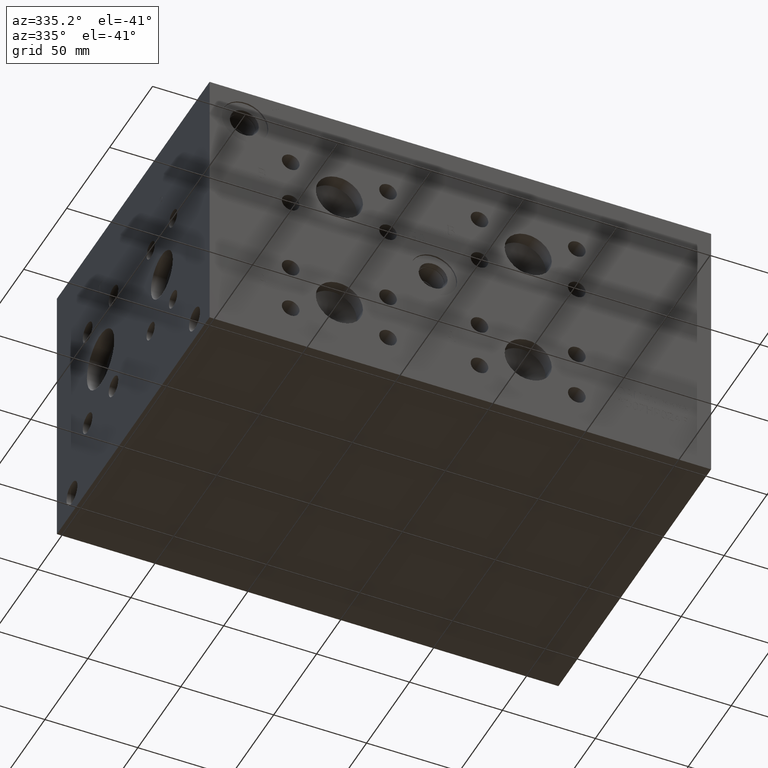
[diagram: clean part render]
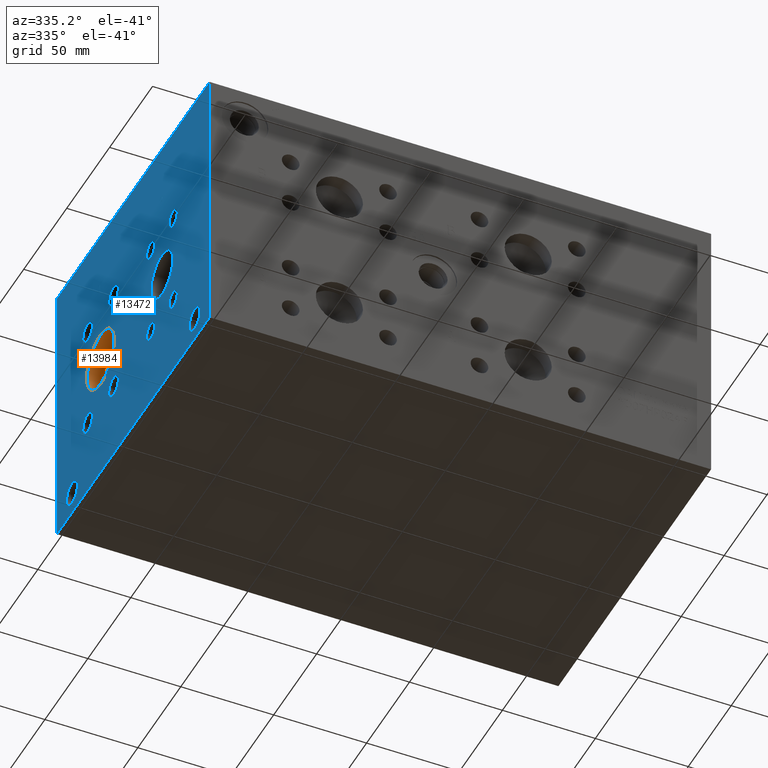
[diagram: same view with the hole feature highlighted: cylindrical wall and planar end face, labeled with their STEP entity ids]
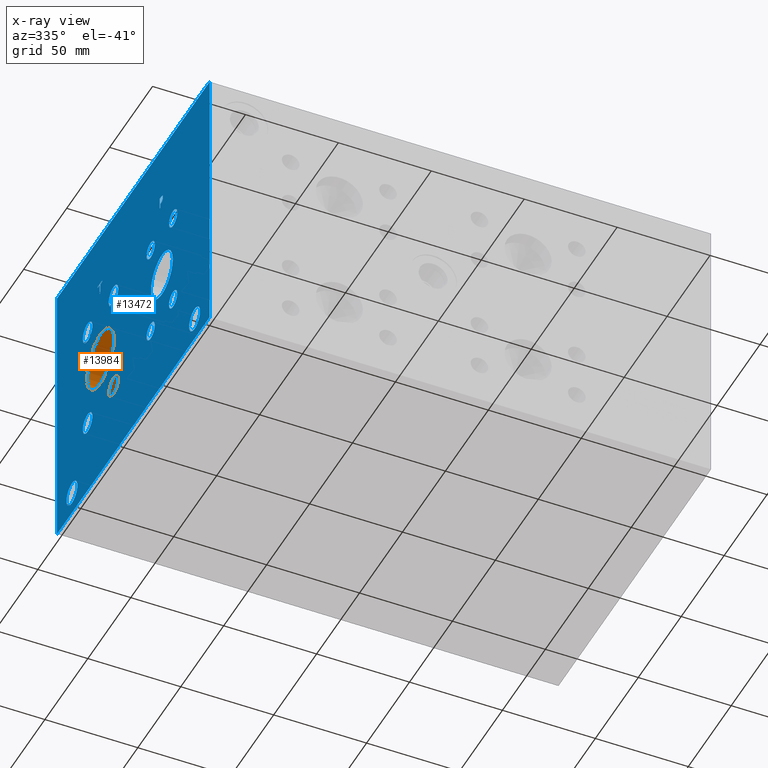
[diagram: x-ray of the same camera — body ghosted, the hole faces saturated]
A machine part, auxiliary view. The highlighted faces form one hole feature of diameter 31.75 mm: the cylindrical wall (entity #13984, orange) and its adjacent planar end face (entity #13472, blue) — they share a circular edge in the B-rep.
The next image is the same camera in x-ray (body ghosted, the hole faces saturated) — the bore reads through the body.
Wall:
#57=CYLINDRICAL_SURFACE('',#14814,15.875);
#244=CIRCLE('',#14228,15.875);
#245=CIRCLE('',#14229,15.875);
#418=CIRCLE('',#14812,15.875);
#419=CIRCLE('',#14813,15.875);
#1819=FACE_OUTER_BOUND('',#2665,.T.);
#2665=EDGE_LOOP('',(#11975,#11976,#11977,#11978,#11979,#11980));
#4009=LINE('',#23359,#5259);
#5259=VECTOR('',#17644,15.875);
#5746=VERTEX_POINT('',#19179);
#5747=VERTEX_POINT('',#19180);
#6707=VERTEX_POINT('',#23352);
#6708=VERTEX_POINT('',#23353);
#7172=EDGE_CURVE('',#5746,#5747,#244,.T.);
#7173=EDGE_CURVE('',#5747,#5746,#245,.T.);
#8560=EDGE_CURVE('',#6707,#6708,#418,.T.);
#8562=EDGE_CURVE('',#6708,#6707,#419,.T.);
#8563=EDGE_CURVE('',#5747,#6708,#4009,.T.);
#11975=ORIENTED_EDGE('',*,*,#7172,.F.);
#11976=ORIENTED_EDGE('',*,*,#7173,.F.);
#11977=ORIENTED_EDGE('',*,*,#8563,.T.);
#11978=ORIENTED_EDGE('',*,*,#8560,.F.);
#11979=ORIENTED_EDGE('',*,*,#8562,.F.);
#11980=ORIENTED_EDGE('',*,*,#8563,.F.);
#13984=ADVANCED_FACE('',(#1819),#57,.F.);
#14228=AXIS2_PLACEMENT_3D('',#19181,#15457,#15458);
#14229=AXIS2_PLACEMENT_3D('',#19182,#15459,#15460);
#14812=AXIS2_PLACEMENT_3D('',#23354,#17637,#17638);
#14813=AXIS2_PLACEMENT_3D('',#23357,#17640,#17641);
#14814=AXIS2_PLACEMENT_3D('',#23358,#17642,#17643);
#15457=DIRECTION('center_axis',(1.,0.,0.));
#15458=DIRECTION('ref_axis',(0.,1.,0.));
#15459=DIRECTION('center_axis',(1.,0.,0.));
#15460=DIRECTION('ref_axis',(0.,1.,0.));
#17637=DIRECTION('center_axis',(-1.,0.,0.));
#17638=DIRECTION('ref_axis',(0.,1.,0.));
#17640=DIRECTION('center_axis',(-1.,0.,0.));
#17641=DIRECTION('ref_axis',(0.,1.,0.));
#17642=DIRECTION('center_axis',(-1.,0.,0.));
#17643=DIRECTION('ref_axis',(0.,1.,0.));
#17644=DIRECTION('',(1.,0.,0.));
#19179=CARTESIAN_POINT('',(0.,142.875,73.025));
#19180=CARTESIAN_POINT('',(0.,111.125,73.025));
#19181=CARTESIAN_POINT('Origin',(0.,127.,73.025));
#19182=CARTESIAN_POINT('Origin',(0.,127.,73.025));
#23352=CARTESIAN_POINT('',(9.16544,142.875,73.025));
#23353=CARTESIAN_POINT('',(9.16544,111.125,73.025));
#23354=CARTESIAN_POINT('Origin',(9.16544,127.,73.025));
#23357=CARTESIAN_POINT('Origin',(9.16544,127.,73.025));
#23358=CARTESIAN_POINT('Origin',(4.58272,127.,73.025));
#23359=CARTESIAN_POINT('',(4.58272,111.125,73.025));
End face:
#244=CIRCLE('',#14228,15.875);
#245=CIRCLE('',#14229,15.875);
#246=CIRCLE('',#14230,5.5626);
#247=CIRCLE('',#14231,5.5626);
#248=CIRCLE('',#14232,5.5626);
#249=CIRCLE('',#14233,5.5626);
#250=CIRCLE('',#14234,5.5626);
#251=CIRCLE('',#14235,5.5626);
#252=CIRCLE('',#14236,5.5626);
#253=CIRCLE('',#14237,5.5626);
#254=CIRCLE('',#14238,12.7);
#255=CIRCLE('',#14239,12.7);
#256=CIRCLE('',#14240,4.7625);
#257=CIRCLE('',#14241,4.7625);
#258=CIRCLE('',#14242,4.7625);
#259=CIRCLE('',#14243,4.7625);
#260=CIRCLE('',#14244,4.7625);
#261=CIRCLE('',#14245,4.7625);
#262=CIRCLE('',#14246,4.7625);
#263=CIRCLE('',#14247,4.7625);
#264=CIRCLE('',#14248,6.35);
#265=CIRCLE('',#14249,6.35);
#266=CIRCLE('',#14250,6.35);
#267=CIRCLE('',#14251,6.35);
#698=FACE_BOUND('',#2057,.T.);
#699=FACE_BOUND('',#2058,.T.);
#700=FACE_BOUND('',#2059,.T.);
#701=FACE_BOUND('',#2060,.T.);
#702=FACE_BOUND('',#2061,.T.);
#703=FACE_BOUND('',#2062,.T.);
#704=FACE_BOUND('',#2063,.T.);
#705=FACE_BOUND('',#2064,.T.);
#706=FACE_BOUND('',#2065,.T.);
#707=FACE_BOUND('',#2066,.T.);
#708=FACE_BOUND('',#2067,.T.);
#709=FACE_BOUND('',#2068,.T.);
#710=FACE_BOUND('',#2069,.T.);
#711=FACE_BOUND('',#2070,.T.);
#881=PLANE('',#14227);
#1307=FACE_OUTER_BOUND('',#2056,.T.);
#2056=EDGE_LOOP('',(#9211,#9212,#9213,#9214));
#2057=EDGE_LOOP('',(#9215,#9216));
#2058=EDGE_LOOP('',(#9217,#9218));
#2059=EDGE_LOOP('',(#9219,#9220));
#2060=EDGE_LOOP('',(#9221,#9222));
#2061=EDGE_LOOP('',(#9223,#9224));
#2062=EDGE_LOOP('',(#9225,#9226));
#2063=EDGE_LOOP('',(#9227,#9228));
#2064=EDGE_LOOP('',(#9229,#9230));
#2065=EDGE_LOOP('',(#9231,#9232));
#2066=EDGE_LOOP('',(#9233,#9234));
#2067=EDGE_LOOP('',(#9235,#9236));
#2068=EDGE_LOOP('',(#9237,#9238));
#2069=EDGE_LOOP('',(#9239,#9240,#9241,#9242,#9243,#9244,#9245,#9246));
#2070=EDGE_LOOP('',(#9247,#9248,#9249,#9250,#9251,#9252,#9253,#9254,#9255));
#2976=LINE('',#19106,#4226);
#2979=LINE('',#19112,#4229);
#2982=LINE('',#19118,#4232);
#2985=LINE('',#19124,#4235);
#2988=LINE('',#19130,#4238);
#2992=LINE('',#19173,#4242);
#2993=LINE('',#19175,#4243);
#2994=LINE('',#19177,#4244);
#2995=LINE('',#19178,#4245);
#2996=LINE('',#19229,#4246);
#2997=LINE('',#19231,#4247);
#2998=LINE('',#19233,#4248);
#2999=LINE('',#19235,#4249);
#3000=LINE('',#19237,#4250);
#3001=LINE('',#19239,#4251);
#3002=LINE('',#19241,#4252);
#3003=LINE('',#19242,#4253);
#4226=VECTOR('',#15425,10.);
#4229=VECTOR('',#15430,10.);
#4232=VECTOR('',#15435,10.);
#4235=VECTOR('',#15440,10.);
#4238=VECTOR('',#15445,10.);
#4242=VECTOR('',#15453,10.);
#4243=VECTOR('',#15454,10.);
#4244=VECTOR('',#15455,10.);
#4245=VECTOR('',#15456,10.);
#4246=VECTOR('',#15505,10.);
#4247=VECTOR('',#15506,10.);
#4248=VECTOR('',#15507,10.);
#4249=VECTOR('',#15508,10.);
#4250=VECTOR('',#15509,10.);
#4251=VECTOR('',#15510,10.);
#4252=VECTOR('',#15511,10.);
#4253=VECTOR('',#15512,10.);
#5424=B_SPLINE_CURVE_WITH_KNOTS('',2,(#19073,#19074,#19075,#19076),
 .UNSPECIFIED.,.F.,.F.,(3,1,3),(0.,1.,2.),.UNSPECIFIED.);
#5426=B_SPLINE_CURVE_WITH_KNOTS('',2,(#19094,#19095,#19096,#19097),
 .UNSPECIFIED.,.F.,.F.,(3,1,3),(0.,1.,2.),.UNSPECIFIED.);
#5428=B_SPLINE_CURVE_WITH_KNOTS('',2,(#19143,#19144,#19145,#19146),
 .UNSPECIFIED.,.F.,.F.,(3,1,3),(0.,1.,2.),.UNSPECIFIED.);
#5430=B_SPLINE_CURVE_WITH_KNOTS('',2,(#19161,#19162,#19163,#19164),
 .UNSPECIFIED.,.F.,.F.,(3,1,3),(0.,1.,2.),.UNSPECIFIED.);
#5724=VERTEX_POINT('',#19071);
#5725=VERTEX_POINT('',#19072);
#5728=VERTEX_POINT('',#19093);
#5730=VERTEX_POINT('',#19105);
#5732=VERTEX_POINT('',#19111);
#5734=VERTEX_POINT('',#19117);
#5736=VERTEX_POINT('',#19123);
#5738=VERTEX_POINT('',#19129);
#5740=VERTEX_POINT('',#19142);
#5742=VERTEX_POINT('',#19171);
#5743=VERTEX_POINT('',#19172);
#5744=VERTEX_POINT('',#19174);
#5745=VERTEX_POINT('',#19176);
#5746=VERTEX_POINT('',#19179);
#5747=VERTEX_POINT('',#19180);
#5748=VERTEX_POINT('',#19183);
#5749=VERTEX_POINT('',#19184);
#5750=VERTEX_POINT('',#19187);
#5751=VERTEX_POINT('',#19188);
#5752=VERTEX_POINT('',#19191);
#5753=VERTEX_POINT('',#19192);
#5754=VERTEX_POINT('',#19195);
#5755=VERTEX_POINT('',#19196);
#5756=VERTEX_POINT('',#19199);
#5757=VERTEX_POINT('',#19200);
#5758=VERTEX_POINT('',#19203);
#5759=VERTEX_POINT('',#19204);
#5760=VERTEX_POINT('',#19207);
#5761=VERTEX_POINT('',#19208);
#5762=VERTEX_POINT('',#19211);
#5763=VERTEX_POINT('',#19212);
#5764=VERTEX_POINT('',#19215);
#5765=VERTEX_POINT('',#19216);
#5766=VERTEX_POINT('',#19219);
#5767=VERTEX_POINT('',#19220);
#5768=VERTEX_POINT('',#19223);
#5769=VERTEX_POINT('',#19224);
#5770=VERTEX_POINT('',#19227);
#5771=VERTEX_POINT('',#19228);
#5772=VERTEX_POINT('',#19230);
#5773=VERTEX_POINT('',#19232);
#5774=VERTEX_POINT('',#19234);
#5775=VERTEX_POINT('',#19236);
#5776=VERTEX_POINT('',#19238);
#5777=VERTEX_POINT('',#19240);
#7141=EDGE_CURVE('',#5724,#5725,#5424,.T.);
#7145=EDGE_CURVE('',#5728,#5724,#5426,.T.);
#7148=EDGE_CURVE('',#5730,#5728,#2976,.T.);
#7151=EDGE_CURVE('',#5732,#5730,#2979,.T.);
#7154=EDGE_CURVE('',#5734,#5732,#2982,.T.);
#7157=EDGE_CURVE('',#5736,#5734,#2985,.T.);
#7160=EDGE_CURVE('',#5738,#5736,#2988,.T.);
#7163=EDGE_CURVE('',#5740,#5738,#5428,.T.);
#7166=EDGE_CURVE('',#5725,#5740,#5430,.T.);
#7168=EDGE_CURVE('',#5742,#5743,#2992,.T.);
#7169=EDGE_CURVE('',#5743,#5744,#2993,.T.);
#7170=EDGE_CURVE('',#5745,#5744,#2994,.T.);
#7171=EDGE_CURVE('',#5742,#5745,#2995,.T.);
#7172=EDGE_CURVE('',#5746,#5747,#244,.T.);
#7173=EDGE_CURVE('',#5747,#5746,#245,.T.);
#7174=EDGE_CURVE('',#5748,#5749,#246,.T.);
#7175=EDGE_CURVE('',#5749,#5748,#247,.T.);
#7176=EDGE_CURVE('',#5750,#5751,#248,.T.);
#7177=EDGE_CURVE('',#5751,#5750,#249,.T.);
#7178=EDGE_CURVE('',#5752,#5753,#250,.T.);
#7179=EDGE_CURVE('',#5753,#5752,#251,.T.);
#7180=EDGE_CURVE('',#5754,#5755,#252,.T.);
#7181=EDGE_CURVE('',#5755,#5754,#253,.T.);
#7182=EDGE_CURVE('',#5756,#5757,#254,.T.);
#7183=EDGE_CURVE('',#5757,#5756,#255,.T.);
#7184=EDGE_CURVE('',#5758,#5759,#256,.T.);
#7185=EDGE_CURVE('',#5759,#5758,#257,.T.);
#7186=EDGE_CURVE('',#5760,#5761,#258,.T.);
#7187=EDGE_CURVE('',#5761,#5760,#259,.T.);
#7188=EDGE_CURVE('',#5762,#5763,#260,.T.);
#7189=EDGE_CURVE('',#5763,#5762,#261,.T.);
#7190=EDGE_CURVE('',#5764,#5765,#262,.T.);
#7191=EDGE_CURVE('',#5765,#5764,#263,.T.);
#7192=EDGE_CURVE('',#5766,#5767,#264,.T.);
#7193=EDGE_CURVE('',#5767,#5766,#265,.T.);
#7194=EDGE_CURVE('',#5768,#5769,#266,.T.);
#7195=EDGE_CURVE('',#5769,#5768,#267,.T.);
#7196=EDGE_CURVE('',#5770,#5771,#2996,.T.);
#7197=EDGE_CURVE('',#5771,#5772,#2997,.T.);
#7198=EDGE_CURVE('',#5772,#5773,#2998,.T.);
#7199=EDGE_CURVE('',#5773,#5774,#2999,.T.);
#7200=EDGE_CURVE('',#5774,#5775,#3000,.T.);
#7201=EDGE_CURVE('',#5775,#5776,#3001,.T.);
#7202=EDGE_CURVE('',#5776,#5777,#3002,.T.);
#7203=EDGE_CURVE('',#5777,#5770,#3003,.T.);
#9211=ORIENTED_EDGE('',*,*,#7168,.T.);
#9212=ORIENTED_EDGE('',*,*,#7169,.T.);
#9213=ORIENTED_EDGE('',*,*,#7170,.F.);
#9214=ORIENTED_EDGE('',*,*,#7171,.F.);
#9215=ORIENTED_EDGE('',*,*,#7172,.T.);
#9216=ORIENTED_EDGE('',*,*,#7173,.T.);
#9217=ORIENTED_EDGE('',*,*,#7174,.T.);
#9218=ORIENTED_EDGE('',*,*,#7175,.T.);
#9219=ORIENTED_EDGE('',*,*,#7176,.T.);
#9220=ORIENTED_EDGE('',*,*,#7177,.T.);
#9221=ORIENTED_EDGE('',*,*,#7178,.T.);
#9222=ORIENTED_EDGE('',*,*,#7179,.T.);
#9223=ORIENTED_EDGE('',*,*,#7180,.T.);
#9224=ORIENTED_EDGE('',*,*,#7181,.T.);
#9225=ORIENTED_EDGE('',*,*,#7182,.T.);
#9226=ORIENTED_EDGE('',*,*,#7183,.T.);
#9227=ORIENTED_EDGE('',*,*,#7184,.T.);
#9228=ORIENTED_EDGE('',*,*,#7185,.T.);
#9229=ORIENTED_EDGE('',*,*,#7186,.T.);
#9230=ORIENTED_EDGE('',*,*,#7187,.T.);
#9231=ORIENTED_EDGE('',*,*,#7188,.T.);
#9232=ORIENTED_EDGE('',*,*,#7189,.T.);
#9233=ORIENTED_EDGE('',*,*,#7190,.T.);
#9234=ORIENTED_EDGE('',*,*,#7191,.T.);
#9235=ORIENTED_EDGE('',*,*,#7192,.T.);
#9236=ORIENTED_EDGE('',*,*,#7193,.T.);
#9237=ORIENTED_EDGE('',*,*,#7194,.T.);
#9238=ORIENTED_EDGE('',*,*,#7195,.T.);
#9239=ORIENTED_EDGE('',*,*,#7196,.T.);
#9240=ORIENTED_EDGE('',*,*,#7197,.T.);
#9241=ORIENTED_EDGE('',*,*,#7198,.T.);
#9242=ORIENTED_EDGE('',*,*,#7199,.T.);
#9243=ORIENTED_EDGE('',*,*,#7200,.T.);
#9244=ORIENTED_EDGE('',*,*,#7201,.T.);
#9245=ORIENTED_EDGE('',*,*,#7202,.T.);
#9246=ORIENTED_EDGE('',*,*,#7203,.T.);
#9247=ORIENTED_EDGE('',*,*,#7141,.T.);
#9248=ORIENTED_EDGE('',*,*,#7166,.T.);
#9249=ORIENTED_EDGE('',*,*,#7163,.T.);
#9250=ORIENTED_EDGE('',*,*,#7160,.T.);
#9251=ORIENTED_EDGE('',*,*,#7157,.T.);
#9252=ORIENTED_EDGE('',*,*,#7154,.T.);
#9253=ORIENTED_EDGE('',*,*,#7151,.T.);
#9254=ORIENTED_EDGE('',*,*,#7148,.T.);
#9255=ORIENTED_EDGE('',*,*,#7145,.T.);
#13472=ADVANCED_FACE('',(#1307,#698,#699,#700,#701,#702,#703,#704,#705,
#706,#707,#708,#709,#710,#711),#881,.T.);
#14227=AXIS2_PLACEMENT_3D('',#19170,#15451,#15452);
#14228=AXIS2_PLACEMENT_3D('',#19181,#15457,#15458);
#14229=AXIS2_PLACEMENT_3D('',#19182,#15459,#15460);
#14230=AXIS2_PLACEMENT_3D('',#19185,#15461,#15462);
#14231=AXIS2_PLACEMENT_3D('',#19186,#15463,#15464);
#14232=AXIS2_PLACEMENT_3D('',#19189,#15465,#15466);
#14233=AXIS2_PLACEMENT_3D('',#19190,#15467,#15468);
#14234=AXIS2_PLACEMENT_3D('',#19193,#15469,#15470);
#14235=AXIS2_PLACEMENT_3D('',#19194,#15471,#15472);
#14236=AXIS2_PLACEMENT_3D('',#19197,#15473,#15474);
#14237=AXIS2_PLACEMENT_3D('',#19198,#15475,#15476);
#14238=AXIS2_PLACEMENT_3D('',#19201,#15477,#15478);
#14239=AXIS2_PLACEMENT_3D('',#19202,#15479,#15480);
#14240=AXIS2_PLACEMENT_3D('',#19205,#15481,#15482);
#14241=AXIS2_PLACEMENT_3D('',#19206,#15483,#15484);
#14242=AXIS2_PLACEMENT_3D('',#19209,#15485,#15486);
#14243=AXIS2_PLACEMENT_3D('',#19210,#15487,#15488);
#14244=AXIS2_PLACEMENT_3D('',#19213,#15489,#15490);
#14245=AXIS2_PLACEMENT_3D('',#19214,#15491,#15492);
#14246=AXIS2_PLACEMENT_3D('',#19217,#15493,#15494);
#14247=AXIS2_PLACEMENT_3D('',#19218,#15495,#15496);
#14248=AXIS2_PLACEMENT_3D('',#19221,#15497,#15498);
#14249=AXIS2_PLACEMENT_3D('',#19222,#15499,#15500);
#14250=AXIS2_PLACEMENT_3D('',#19225,#15501,#15502);
#14251=AXIS2_PLACEMENT_3D('',#19226,#15503,#15504);
#15425=DIRECTION('',(0.,-1.,0.));
#15430=DIRECTION('',(0.,-2.79741238752512E-15,1.));
#15435=DIRECTION('',(0.,1.,0.));
#15440=DIRECTION('',(0.,3.75218139804998E-15,-1.));
#15445=DIRECTION('',(0.,1.,0.));
#15451=DIRECTION('center_axis',(-1.,0.,0.));
#15452=DIRECTION('ref_axis',(0.,-1.,0.));
#15453=DIRECTION('',(0.,-1.,0.));
#15454=DIRECTION('',(0.,0.,1.));
#15455=DIRECTION('',(0.,-1.,0.));
#15456=DIRECTION('',(0.,0.,1.));
#15457=DIRECTION('center_axis',(1.,0.,0.));
#15458=DIRECTION('ref_axis',(0.,1.,0.));
#15459=DIRECTION('center_axis',(1.,0.,0.));
#15460=DIRECTION('ref_axis',(0.,1.,0.));
#15461=DIRECTION('center_axis',(1.,0.,0.));
#15462=DIRECTION('ref_axis',(0.,1.,0.));
#15463=DIRECTION('center_axis',(1.,0.,0.));
#15464=DIRECTION('ref_axis',(0.,1.,0.));
#15465=DIRECTION('center_axis',(1.,0.,0.));
#15466=DIRECTION('ref_axis',(0.,1.,0.));
#15467=DIRECTION('center_axis',(1.,0.,0.));
#15468=DIRECTION('ref_axis',(0.,1.,0.));
#15469=DIRECTION('center_axis',(1.,0.,0.));
#15470=DIRECTION('ref_axis',(0.,1.,0.));
#15471=DIRECTION('center_axis',(1.,0.,0.));
#15472=DIRECTION('ref_axis',(0.,1.,0.));
#15473=DIRECTION('center_axis',(1.,0.,0.));
#15474=DIRECTION('ref_axis',(0.,1.,0.));
#15475=DIRECTION('center_axis',(1.,0.,0.));
#15476=DIRECTION('ref_axis',(0.,1.,0.));
#15477=DIRECTION('center_axis',(1.,0.,0.));
#15478=DIRECTION('ref_axis',(0.,1.,0.));
#15479=DIRECTION('center_axis',(1.,0.,0.));
#15480=DIRECTION('ref_axis',(0.,1.,0.));
#15481=DIRECTION('center_axis',(1.,0.,0.));
#15482=DIRECTION('ref_axis',(0.,1.,0.));
#15483=DIRECTION('center_axis',(1.,0.,0.));
#15484=DIRECTION('ref_axis',(0.,1.,0.));
#15485=DIRECTION('center_axis',(1.,0.,0.));
#15486=DIRECTION('ref_axis',(0.,1.,0.));
#15487=DIRECTION('center_axis',(1.,0.,0.));
#15488=DIRECTION('ref_axis',(0.,1.,0.));
#15489=DIRECTION('center_axis',(1.,0.,0.));
#15490=DIRECTION('ref_axis',(0.,1.,0.));
#15491=DIRECTION('center_axis',(1.,0.,0.));
#15492=DIRECTION('ref_axis',(0.,1.,0.));
#15493=DIRECTION('center_axis',(1.,0.,0.));
#15494=DIRECTION('ref_axis',(0.,1.,0.));
#15495=DIRECTION('center_axis',(1.,0.,0.));
#15496=DIRECTION('ref_axis',(0.,1.,0.));
#15497=DIRECTION('center_axis',(1.,0.,0.));
#15498=DIRECTION('ref_axis',(0.,1.,0.));
#15499=DIRECTION('center_axis',(1.,0.,0.));
#15500=DIRECTION('ref_axis',(0.,1.,0.));
#15501=DIRECTION('center_axis',(1.,0.,0.));
#15502=DIRECTION('ref_axis',(0.,1.,0.));
#15503=DIRECTION('center_axis',(1.,0.,0.));
#15504=DIRECTION('ref_axis',(0.,1.,0.));
#15505=DIRECTION('',(0.,1.,0.));
#15506=DIRECTION('',(0.,-3.17280044688051E-15,1.));
#15507=DIRECTION('',(0.,1.,0.));
#15508=DIRECTION('',(0.,0.,1.));
#15509=DIRECTION('',(0.,-1.,-6.95969130283468E-15));
#15510=DIRECTION('',(0.,0.,-1.));
#15511=DIRECTION('',(0.,1.,8.33818088455555E-15));
#15512=DIRECTION('',(0.,3.17280044688051E-15,-1.));
#19071=CARTESIAN_POINT('',(0.,54.9766327976406,122.158768143971));
#19072=CARTESIAN_POINT('',(0.,54.220190345468,120.640737372604));
#19073=CARTESIAN_POINT('Ctrl Pts',(0.,54.9766327976406,122.158768143971));
#19074=CARTESIAN_POINT('Ctrl Pts',(0.,54.6215679731514,121.916912393956));
#19075=CARTESIAN_POINT('Ctrl Pts',(0.,54.220190345468,121.170761675827));
#19076=CARTESIAN_POINT('Ctrl Pts',(0.,54.220190345468,120.640737372604));
#19093=CARTESIAN_POINT('',(0.,56.6387478456117,122.554999904633));
#19094=CARTESIAN_POINT('Ctrl Pts',(0.,56.6387478456117,122.554999904633));
#19095=CARTESIAN_POINT('Ctrl Pts',(0.,56.0727024732376,122.554999904633));
#19096=CARTESIAN_POINT('Ctrl Pts',(0.,55.280238951914,122.369748691856));
#19097=CARTESIAN_POINT('Ctrl Pts',(0.,54.9766327976406,122.158768143971));
#19105=CARTESIAN_POINT('',(0.,58.2339666223022,122.554999904633));
#19106=CARTESIAN_POINT('',(0.,118.016983311151,122.554999904633));
#19111=CARTESIAN_POINT('',(0.,58.2339666223022,116.205));
#19112=CARTESIAN_POINT('',(0.,58.2339666223024,58.1024999999998));
#19117=CARTESIAN_POINT('',(0.,57.3900444307627,116.205));
#19118=CARTESIAN_POINT('',(0.,117.595022215381,116.205));
#19123=CARTESIAN_POINT('',(0.,57.3900444307627,118.572098829928));
#19124=CARTESIAN_POINT('',(0.,57.3900444307629,59.2860494149637));
#19129=CARTESIAN_POINT('',(0.,56.6747689147628,118.572098829928));
#19130=CARTESIAN_POINT('',(0.,117.237384457381,118.572098829928));
#19142=CARTESIAN_POINT('',(0.,54.7759439837989,119.23076980869));
#19143=CARTESIAN_POINT('Ctrl Pts',(0.,54.7759439837989,119.23076980869));
#19144=CARTESIAN_POINT('Ctrl Pts',(0.,55.1052794731802,118.906580186331));
#19145=CARTESIAN_POINT('Ctrl Pts',(0.,55.9955144679139,118.572098829928));
#19146=CARTESIAN_POINT('Ctrl Pts',(0.,56.6747689147628,118.572098829928));
#19161=CARTESIAN_POINT('Ctrl Pts',(0.,54.220190345468,120.640737372604));
#19162=CARTESIAN_POINT('Ctrl Pts',(0.,54.220190345468,120.229068010877));
#19163=CARTESIAN_POINT('Ctrl Pts',(0.,54.5135047656982,119.48806315977));
#19164=CARTESIAN_POINT('Ctrl Pts',(0.,54.7759439837989,119.23076980869));
#19170=CARTESIAN_POINT('Origin',(0.,177.8,0.));
#19171=CARTESIAN_POINT('',(0.,177.8,0.));
#19172=CARTESIAN_POINT('',(0.,0.,0.));
#19173=CARTESIAN_POINT('',(0.,177.8,0.));
#19174=CARTESIAN_POINT('',(0.,0.,152.4));
#19175=CARTESIAN_POINT('',(0.,0.,0.));
#19176=CARTESIAN_POINT('',(0.,177.8,152.4));
#19177=CARTESIAN_POINT('',(0.,177.8,152.4));
#19178=CARTESIAN_POINT('',(0.,177.8,0.));
#19179=CARTESIAN_POINT('',(0.,142.875,73.025));
#19180=CARTESIAN_POINT('',(0.,111.125,73.025));
#19181=CARTESIAN_POINT('Origin',(0.,127.,73.025));
#19182=CARTESIAN_POINT('Origin',(0.,127.,73.025));
#19183=CARTESIAN_POINT('',(0.,147.6502,43.6626));
#19184=CARTESIAN_POINT('',(0.,136.525,43.6626));
#19185=CARTESIAN_POINT('Origin',(0.,142.0876,43.6626));
#19186=CARTESIAN_POINT('Origin',(0.,142.0876,43.6626));
#19187=CARTESIAN_POINT('',(0.,117.48008,102.3874));
#19188=CARTESIAN_POINT('',(0.,106.35488,102.3874));
#19189=CARTESIAN_POINT('Origin',(0.,111.91748,102.3874));
#19190=CARTESIAN_POINT('Origin',(0.,111.91748,102.3874));
#19191=CARTESIAN_POINT('',(0.,147.6502,102.39248));
#19192=CARTESIAN_POINT('',(0.,136.525,102.39248));
#19193=CARTESIAN_POINT('Origin',(0.,142.0876,102.39248));
#19194=CARTESIAN_POINT('Origin',(0.,142.0876,102.39248));
#19195=CARTESIAN_POINT('',(0.,117.48008,43.65752));
#19196=CARTESIAN_POINT('',(0.,106.35488,43.65752));
#19197=CARTESIAN_POINT('Origin',(0.,111.91748,43.65752));
#19198=CARTESIAN_POINT('Origin',(0.,111.91748,43.65752));
#19199=CARTESIAN_POINT('',(0.,68.2752,71.4248));
#19200=CARTESIAN_POINT('',(0.,42.8752,71.4248));
#19201=CARTESIAN_POINT('Origin',(0.,55.5752,71.4248));
#19202=CARTESIAN_POINT('Origin',(0.,55.5752,71.4248));
#19203=CARTESIAN_POINT('',(0.,73.4187,45.2374));
#19204=CARTESIAN_POINT('',(0.,63.8937,45.2374));
#19205=CARTESIAN_POINT('Origin',(0.,68.6562,45.2374));
#19206=CARTESIAN_POINT('Origin',(0.,68.6562,45.2374));
#19207=CARTESIAN_POINT('',(0.,47.2567,97.6122));
#19208=CARTESIAN_POINT('',(0.,37.7317,97.6122));
#19209=CARTESIAN_POINT('Origin',(0.,42.4942,97.6122));
#19210=CARTESIAN_POINT('Origin',(0.,42.4942,97.6122));
#19211=CARTESIAN_POINT('',(0.,73.4187,97.61728));
#19212=CARTESIAN_POINT('',(0.,63.8937,97.61728));
#19213=CARTESIAN_POINT('Origin',(0.,68.6562,97.61728));
#19214=CARTESIAN_POINT('Origin',(0.,68.6562,97.61728));
#19215=CARTESIAN_POINT('',(0.,47.2567,45.23232));
#19216=CARTESIAN_POINT('',(0.,37.7317,45.23232));
#19217=CARTESIAN_POINT('Origin',(0.,42.4942,45.23232));
#19218=CARTESIAN_POINT('Origin',(0.,42.4942,45.23232));
#19219=CARTESIAN_POINT('',(0.,23.8252,12.7));
#19220=CARTESIAN_POINT('',(0.,11.1252,12.7));
#19221=CARTESIAN_POINT('Origin',(0.,17.4752,12.7));
#19222=CARTESIAN_POINT('Origin',(0.,17.4752,12.7));
#19223=CARTESIAN_POINT('',(0.,166.6748,12.7));
#19224=CARTESIAN_POINT('',(0.,153.9748,12.7));
#19225=CARTESIAN_POINT('Origin',(0.,160.3248,12.7));
#19226=CARTESIAN_POINT('Origin',(0.,160.3248,12.7));
#19227=CARTESIAN_POINT('',(0.,127.332834728547,116.205));
#19228=CARTESIAN_POINT('',(0.,128.176756920087,116.205));
#19229=CARTESIAN_POINT('',(0.,152.566417364274,116.205));
#19230=CARTESIAN_POINT('',(0.,128.176756920087,121.803703319482));
#19231=CARTESIAN_POINT('',(0.,128.176756920087,58.1024999999999));
#19232=CARTESIAN_POINT('',(0.,130.307145867022,121.803703319482));
#19233=CARTESIAN_POINT('',(0.,152.988378460043,121.803703319482));
#19234=CARTESIAN_POINT('',(0.,130.307145867022,122.554999904633));
#19235=CARTESIAN_POINT('',(0.,130.307145867022,60.9018516597408));
#19236=CARTESIAN_POINT('',(0.,125.202445781612,122.554999904633));
#19237=CARTESIAN_POINT('',(0.,154.05357293351,122.554999904633));
#19238=CARTESIAN_POINT('',(0.,125.202445781612,121.803703319482));
#19239=CARTESIAN_POINT('',(0.,125.202445781612,61.2774999523163));
#19240=CARTESIAN_POINT('',(0.,127.332834728547,121.803703319482));
#19241=CARTESIAN_POINT('',(0.,151.501222890805,121.803703319482));
#19242=CARTESIAN_POINT('',(0.,127.332834728547,60.9018516597407));